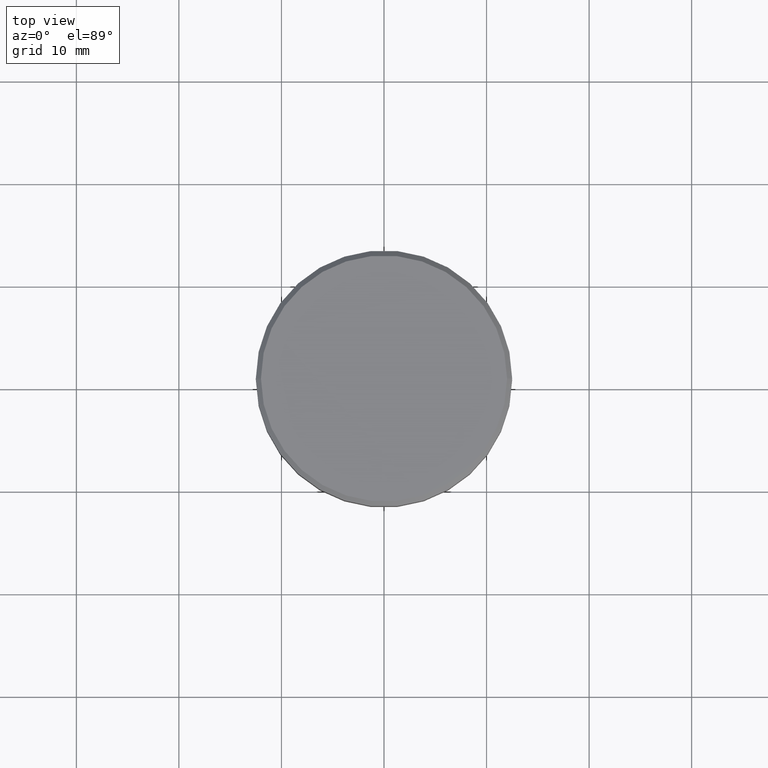
[diagram: clean part render]
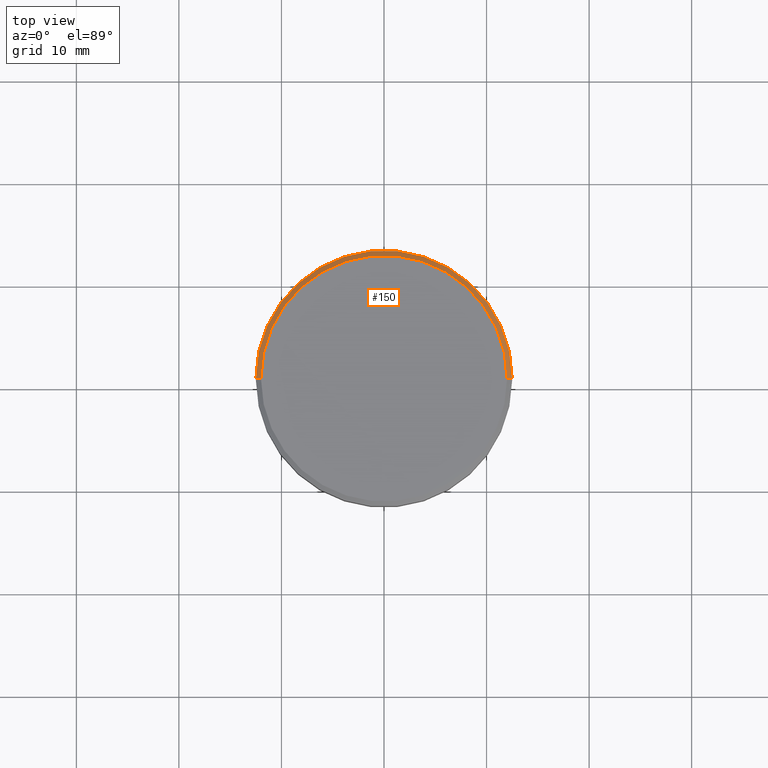
[diagram: same view with one face highlighted and labeled with its STEP entity id]
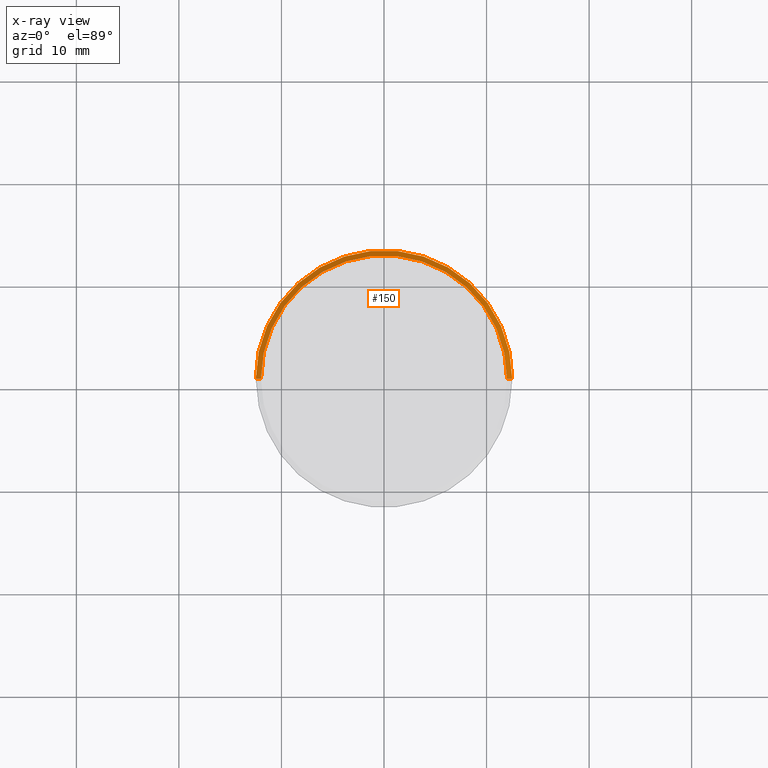
[diagram: x-ray of the same camera — body ghosted, the highlighted face saturated]
A machine part, top view. The second image highlights one B-rep face of the part: STEP entity #150.
The next image is the same camera in x-ray: the body ghosted, the highlighted face saturated — about 0% of this face is hidden behind the body in this view.
In plain terms, the highlighted conical surface has half-angle 45 deg.
Its self-contained STEP definition (entity closure, byte-faithful):
#47 = VERTEX_POINT ( 'NONE', #254 ) ;
#54 = DIRECTION ( 'NONE',  ( 0.000000000000000000, 0.000000000000000000, -1.000000000000000000 ) ) ;
#121 = CARTESIAN_POINT ( 'NONE',  ( -11.99999999999999645, 0.000000000000000000, 0.000000000000000000 ) ) ;
#123 = AXIS2_PLACEMENT_3D ( 'NONE', #1177, #629, #715 ) ;
#150 = ADVANCED_FACE ( 'NONE', ( #647 ), #1011, .T. ) ;
#163 = VECTOR ( 'NONE', #435, 1000.000000000000000 ) ;
#173 = CARTESIAN_POINT ( 'NONE',  ( 11.99999999999999645, 1.469576158976823553E-15, 0.000000000000000000 ) ) ;
#206 = VERTEX_POINT ( 'NONE', #121 ) ;
#254 = CARTESIAN_POINT ( 'NONE',  ( -12.50000000000000000, 1.530808498934191521E-15, -0.5000000000000056621 ) ) ;
#257 = CIRCLE ( 'NONE', #123, 11.99999999999999645 ) ;
#318 = VERTEX_POINT ( 'NONE', #982 ) ;
#340 = CARTESIAN_POINT ( 'NONE',  ( -11.99999999999999645, 0.000000000000000000, 0.000000000000000000 ) ) ;
#344 = EDGE_LOOP ( 'NONE', ( #348, #1058, #1061, #781 ) ) ;
#348 = ORIENTED_EDGE ( 'NONE', *, *, #363, .F. ) ;
#363 = EDGE_CURVE ( 'NONE', #318, #206, #257, .T. ) ;
#383 = DIRECTION ( 'NONE',  ( 0.000000000000000000, 0.000000000000000000, -1.000000000000000000 ) ) ;
#396 = CIRCLE ( 'NONE', #579, 12.50000000000000000 ) ;
#403 = EDGE_CURVE ( 'NONE', #318, #494, #614, .T. ) ;
#427 = DIRECTION ( 'NONE',  ( 1.000000000000000000, 0.000000000000000000, 0.000000000000000000 ) ) ;
#435 = DIRECTION ( 'NONE',  ( 0.7071067811865463515, 8.659560562354919300E-17, -0.7071067811865487940 ) ) ;
#494 = VERTEX_POINT ( 'NONE', #1099 ) ;
#533 = LINE ( 'NONE', #340, #1131 ) ;
#540 = AXIS2_PLACEMENT_3D ( 'NONE', #553, #383, #1100 ) ;
#553 = CARTESIAN_POINT ( 'NONE',  ( 0.000000000000000000, 0.000000000000000000, 0.000000000000000000 ) ) ;
#579 = AXIS2_PLACEMENT_3D ( 'NONE', #590, #54, #427 ) ;
#590 = CARTESIAN_POINT ( 'NONE',  ( 0.000000000000000000, 0.000000000000000000, -0.5000000000000056621 ) ) ;
#614 = LINE ( 'NONE', #173, #163 ) ;
#629 = DIRECTION ( 'NONE',  ( -0.000000000000000000, -0.000000000000000000, 1.000000000000000000 ) ) ;
#647 = FACE_OUTER_BOUND ( 'NONE', #344, .T. ) ;
#715 = DIRECTION ( 'NONE',  ( 1.000000000000000000, 0.000000000000000000, 0.000000000000000000 ) ) ;
#781 = ORIENTED_EDGE ( 'NONE', *, *, #928, .F. ) ;
#788 = EDGE_CURVE ( 'NONE', #47, #494, #396, .T. ) ;
#928 = EDGE_CURVE ( 'NONE', #206, #47, #533, .T. ) ;
#982 = CARTESIAN_POINT ( 'NONE',  ( 11.99999999999999645, 1.500192328955507537E-15, 0.000000000000000000 ) ) ;
#1011 = CONICAL_SURFACE ( 'NONE', #540, 11.99999999999999645, 0.7853981633974466137 ) ;
#1058 = ORIENTED_EDGE ( 'NONE', *, *, #403, .T. ) ;
#1061 = ORIENTED_EDGE ( 'NONE', *, *, #788, .F. ) ;
#1099 = CARTESIAN_POINT ( 'NONE',  ( 12.50000000000000000, 0.000000000000000000, -0.5000000000000056621 ) ) ;
#1100 = DIRECTION ( 'NONE',  ( -1.000000000000000000, 0.000000000000000000, 0.000000000000000000 ) ) ;
#1131 = VECTOR ( 'NONE', #1173, 1000.000000000000000 ) ;
#1173 = DIRECTION ( 'NONE',  ( -0.7071067811865463515, 0.000000000000000000, -0.7071067811865487940 ) ) ;
#1177 = CARTESIAN_POINT ( 'NONE',  ( 0.000000000000000000, 0.000000000000000000, 0.000000000000000000 ) ) ;